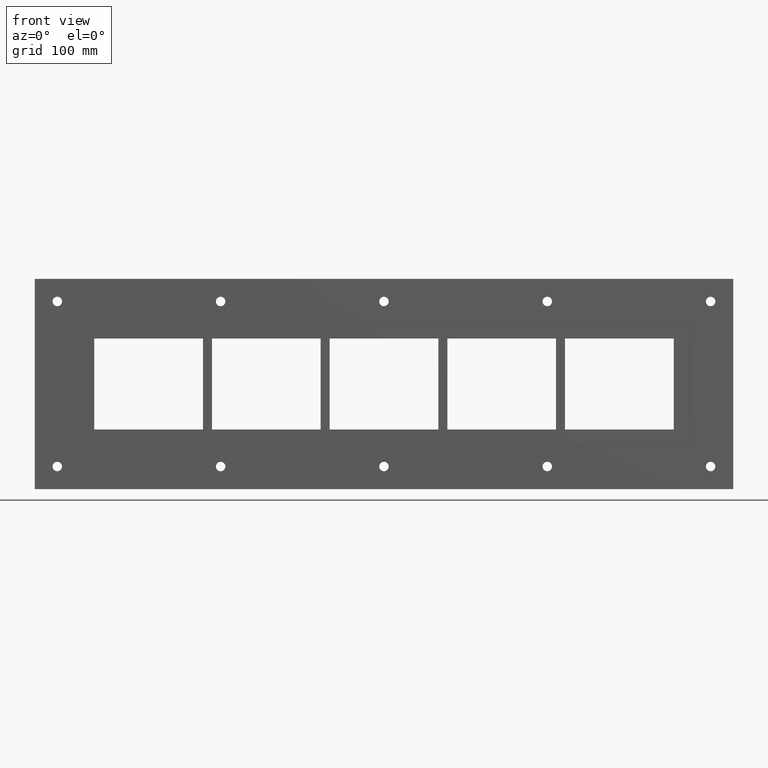
[diagram: clean part render]
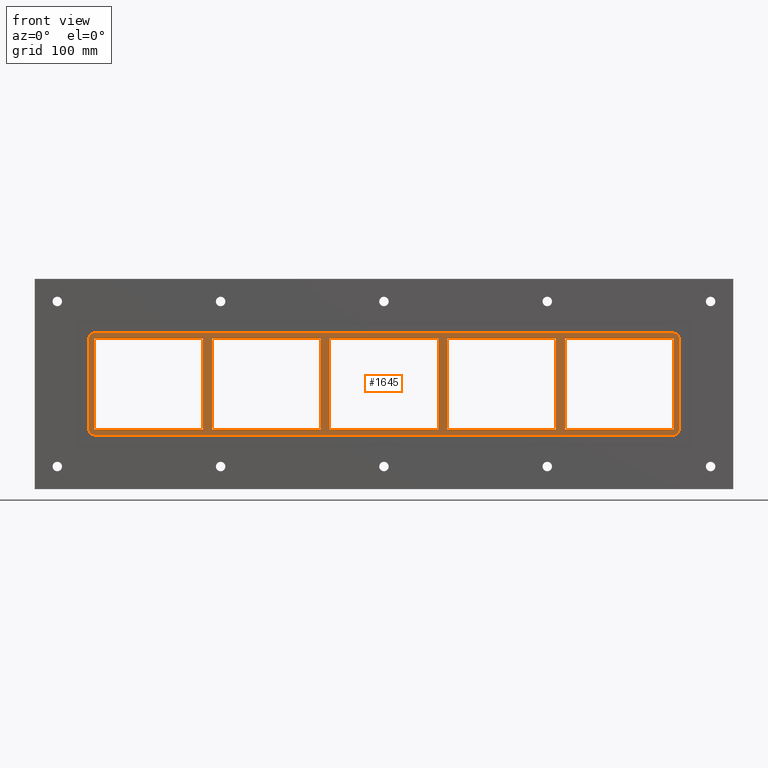
[diagram: same view with one face highlighted and labeled with its STEP entity id]
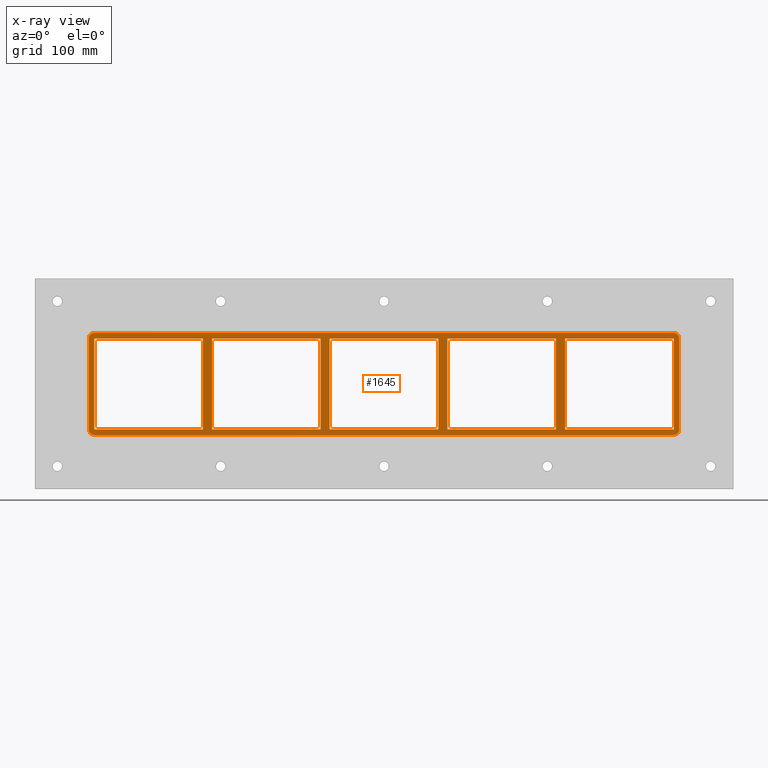
[diagram: x-ray of the same camera — body ghosted, the highlighted face saturated]
A machine part, front view. The second image highlights one B-rep face of the part: STEP entity #1645.
The next image is the same camera in x-ray: the body ghosted, the highlighted face saturated — about 0% of this face is hidden behind the body in this view.
In plain terms, the highlighted planar face has unit normal (0, 1, 0).
Its self-contained STEP definition (entity closure, byte-faithful):
#353=CARTESIAN_POINT('',(190.74999999999804,-3.0,-50.499999999999972));
#354=VERTEX_POINT('',#353);
#355=CARTESIAN_POINT('',(190.74999999999804,-3.0,50.499999999999972));
#356=VERTEX_POINT('',#355);
#357=CARTESIAN_POINT('',(190.74999999999804,-3.0,-50.499999999999972));
#358=DIRECTION('',(0.0,0.0,1.0));
#359=VECTOR('',#358,100.99999999999994);
#360=LINE('',#357,#359);
#361=EDGE_CURVE('',#354,#356,#360,.T.);
#393=CARTESIAN_POINT('',(200.74999999999278,-3.0,50.499999999999972));
#394=VERTEX_POINT('',#393);
#395=CARTESIAN_POINT('',(200.74999999999278,-3.0,-50.499999999987082));
#396=VERTEX_POINT('',#395);
#397=CARTESIAN_POINT('',(200.74999999999278,-3.0,50.499999999999972));
#398=DIRECTION('',(0.0,0.0,-1.0));
#399=VECTOR('',#398,100.99999999998704);
#400=LINE('',#397,#399);
#401=EDGE_CURVE('',#394,#396,#400,.T.);
#433=CARTESIAN_POINT('',(60.249999999997996,-3.0,-50.499999999999972));
#434=VERTEX_POINT('',#433);
#435=CARTESIAN_POINT('',(60.249999999997996,-3.0,50.499999999999972));
#436=VERTEX_POINT('',#435);
#437=CARTESIAN_POINT('',(60.249999999997996,-3.0,-50.499999999999972));
#438=DIRECTION('',(0.0,0.0,1.0));
#439=VECTOR('',#438,100.99999999999994);
#440=LINE('',#437,#439);
#441=EDGE_CURVE('',#434,#436,#440,.T.);
#473=CARTESIAN_POINT('',(70.249999999992738,-3.0,50.499999999999972));
#474=VERTEX_POINT('',#473);
#475=CARTESIAN_POINT('',(70.249999999992738,-3.0,-50.499999999987082));
#476=VERTEX_POINT('',#475);
#477=CARTESIAN_POINT('',(70.249999999992738,-3.0,50.499999999999972));
#478=DIRECTION('',(0.0,0.0,-1.0));
#479=VECTOR('',#478,100.99999999998704);
#480=LINE('',#477,#479);
#481=EDGE_CURVE('',#474,#476,#480,.T.);
#513=CARTESIAN_POINT('',(-70.250000000002018,-3.0,-50.499999999999972));
#514=VERTEX_POINT('',#513);
#515=CARTESIAN_POINT('',(-70.250000000002018,-3.0,50.499999999999972));
#516=VERTEX_POINT('',#515);
#517=CARTESIAN_POINT('',(-70.250000000002018,-3.0,-50.499999999999972));
#518=DIRECTION('',(0.0,0.0,1.0));
#519=VECTOR('',#518,100.99999999999994);
#520=LINE('',#517,#519);
#521=EDGE_CURVE('',#514,#516,#520,.T.);
#553=CARTESIAN_POINT('',(-60.250000000007269,-3.0,50.499999999999972));
#554=VERTEX_POINT('',#553);
#555=CARTESIAN_POINT('',(-60.250000000007269,-3.0,-50.499999999987082));
#556=VERTEX_POINT('',#555);
#557=CARTESIAN_POINT('',(-60.250000000007269,-3.0,50.499999999999972));
#558=DIRECTION('',(0.0,0.0,-1.0));
#559=VECTOR('',#558,100.99999999998704);
#560=LINE('',#557,#559);
#561=EDGE_CURVE('',#554,#556,#560,.T.);
#602=CARTESIAN_POINT('',(-190.75000000000728,-3.0,-50.499999999987082));
#603=VERTEX_POINT('',#602);
#610=CARTESIAN_POINT('',(-70.250000000002018,-3.0,-50.499999999999972));
#611=DIRECTION('',(-1.0,0.0,0.0));
#612=VECTOR('',#611,120.50000000000523);
#613=LINE('',#610,#612);
#614=EDGE_CURVE('',#514,#603,#613,.T.);
#632=CARTESIAN_POINT('',(60.249999999997982,-3.0,-50.499999999999972));
#633=DIRECTION('',(-1.0,0.0,0.0));
#634=VECTOR('',#633,120.50000000000526);
#635=LINE('',#632,#634);
#636=EDGE_CURVE('',#434,#556,#635,.T.);
#654=CARTESIAN_POINT('',(190.74999999999804,-3.0,-50.499999999999972));
#655=DIRECTION('',(-1.0,0.0,0.0));
#656=VECTOR('',#655,120.50000000000531);
#657=LINE('',#654,#656);
#658=EDGE_CURVE('',#354,#476,#657,.T.);
#669=CARTESIAN_POINT('',(321.25000000000006,-3.0,-50.499999999999972));
#670=VERTEX_POINT('',#669);
#671=CARTESIAN_POINT('',(321.25000000000006,-3.0,-50.499999999999972));
#672=DIRECTION('',(-1.0,0.0,0.0));
#673=VECTOR('',#672,120.50000000000728);
#674=LINE('',#671,#673);
#675=EDGE_CURVE('',#670,#396,#674,.T.);
#700=CARTESIAN_POINT('',(-190.75000000000728,-3.0,50.499999999999972));
#701=VERTEX_POINT('',#700);
#702=CARTESIAN_POINT('',(-190.75000000000728,-3.0,50.499999999999972));
#703=DIRECTION('',(1.0,0.0,0.0));
#704=VECTOR('',#703,120.50000000000526);
#705=LINE('',#702,#704);
#706=EDGE_CURVE('',#701,#516,#705,.T.);
#731=CARTESIAN_POINT('',(-60.250000000007276,-3.0,50.499999999999972));
#732=DIRECTION('',(1.0,0.0,0.0));
#733=VECTOR('',#732,120.50000000000529);
#734=LINE('',#731,#733);
#735=EDGE_CURVE('',#554,#436,#734,.T.);
#761=CARTESIAN_POINT('',(321.25000000000006,-3.0,50.499999999999972));
#762=VERTEX_POINT('',#761);
#769=CARTESIAN_POINT('',(200.74999999999278,-3.0,50.499999999999972));
#770=DIRECTION('',(1.0,0.0,0.0));
#771=VECTOR('',#770,120.50000000000728);
#772=LINE('',#769,#771);
#773=EDGE_CURVE('',#394,#762,#772,.T.);
#784=CARTESIAN_POINT('',(70.249999999992724,-3.0,50.499999999999972));
#785=DIRECTION('',(1.0,0.0,0.0));
#786=VECTOR('',#785,120.50000000000534);
#787=LINE('',#784,#786);
#788=EDGE_CURVE('',#474,#356,#787,.T.);
#805=CARTESIAN_POINT('',(-200.75000000000202,-3.0,-50.499999999999972));
#806=VERTEX_POINT('',#805);
#807=CARTESIAN_POINT('',(-200.75000000000202,-3.0,50.499999999999972));
#808=VERTEX_POINT('',#807);
#809=CARTESIAN_POINT('',(-200.75000000000202,-3.0,-50.499999999999972));
#810=DIRECTION('',(0.0,0.0,1.0));
#811=VECTOR('',#810,100.99999999999994);
#812=LINE('',#809,#811);
#813=EDGE_CURVE('',#806,#808,#812,.T.);
#845=CARTESIAN_POINT('',(-190.75000000000728,-3.0,50.499999999999972));
#846=DIRECTION('',(0.0,0.0,-1.0));
#847=VECTOR('',#846,100.99999999998704);
#848=LINE('',#845,#847);
#849=EDGE_CURVE('',#701,#603,#848,.T.);
#876=CARTESIAN_POINT('',(-321.24999999999994,-3.0,-50.499999999999972));
#877=VERTEX_POINT('',#876);
#884=CARTESIAN_POINT('',(-200.75000000000202,-3.0,-50.499999999999972));
#885=DIRECTION('',(-1.0,0.0,0.0));
#886=VECTOR('',#885,120.49999999999798);
#887=LINE('',#884,#886);
#888=EDGE_CURVE('',#806,#877,#887,.T.);
#899=CARTESIAN_POINT('',(-321.24999999999994,-3.0,50.499999999999972));
#900=VERTEX_POINT('',#899);
#901=CARTESIAN_POINT('',(-321.24999999999994,-3.0,50.499999999999972));
#902=DIRECTION('',(1.0,0.0,0.0));
#903=VECTOR('',#902,120.49999999999793);
#904=LINE('',#901,#903);
#905=EDGE_CURVE('',#900,#808,#904,.T.);
#1285=CARTESIAN_POINT('',(-321.25,-3.0,-50.499999999999972));
#1286=DIRECTION('',(0.0,0.0,1.0));
#1287=VECTOR('',#1286,100.99999999999994);
#1288=LINE('',#1285,#1287);
#1289=EDGE_CURVE('',#877,#900,#1288,.T.);
#1300=CARTESIAN_POINT('',(321.24999999999994,-3.0,56.499999999999986));
#1301=VERTEX_POINT('',#1300);
#1308=CARTESIAN_POINT('',(327.25,-3.0,50.499999999999986));
#1309=VERTEX_POINT('',#1308);
#1310=CARTESIAN_POINT('',(321.25,-3.0,50.499999999999986));
#1311=DIRECTION('',(0.0,1.0,0.0));
#1312=DIRECTION('',(0.707106781186544,0.0,0.707106781186551));
#1313=AXIS2_PLACEMENT_3D('',#1310,#1311,#1312);
#1314=CIRCLE('',#1313,6.0);
#1315=EDGE_CURVE('',#1301,#1309,#1314,.T.);
#1365=CARTESIAN_POINT('',(327.25,-3.0,-50.499999999999986));
#1366=VERTEX_POINT('',#1365);
#1367=CARTESIAN_POINT('',(327.25,-3.0,-50.499999999999986));
#1368=DIRECTION('',(0.0,0.0,1.0));
#1369=VECTOR('',#1368,100.99999999999997);
#1370=LINE('',#1367,#1369);
#1371=EDGE_CURVE('',#1366,#1309,#1370,.T.);
#1412=CARTESIAN_POINT('',(-321.25,-3.0,56.499999999999986));
#1413=VERTEX_POINT('',#1412);
#1420=CARTESIAN_POINT('',(321.25,-3.0,56.499999999999986));
#1421=DIRECTION('',(-1.0,0.0,0.0));
#1422=VECTOR('',#1421,642.5);
#1423=LINE('',#1420,#1422);
#1424=EDGE_CURVE('',#1301,#1413,#1423,.T.);
#1437=CARTESIAN_POINT('',(321.25,-3.0,-56.499999999999986));
#1438=VERTEX_POINT('',#1437);
#1439=CARTESIAN_POINT('',(321.25,-3.0,-50.499999999999986));
#1440=DIRECTION('',(0.0,1.0,0.0));
#1441=DIRECTION('',(0.707106781186544,0.0,-0.707106781186551));
#1442=AXIS2_PLACEMENT_3D('',#1439,#1440,#1441);
#1443=CIRCLE('',#1442,6.0);
#1444=EDGE_CURVE('',#1366,#1438,#1443,.T.);
#1486=CARTESIAN_POINT('',(-327.25,-3.0,50.499999999999986));
#1487=VERTEX_POINT('',#1486);
#1494=CARTESIAN_POINT('',(-321.25,-3.0,50.499999999999986));
#1495=DIRECTION('',(0.0,1.0,0.0));
#1496=DIRECTION('',(-0.707106781186544,0.0,0.707106781186551));
#1497=AXIS2_PLACEMENT_3D('',#1494,#1495,#1496);
#1498=CIRCLE('',#1497,6.0);
#1499=EDGE_CURVE('',#1487,#1413,#1498,.T.);
#1512=CARTESIAN_POINT('',(-321.24999999999994,-3.0,-56.499999999999986));
#1513=VERTEX_POINT('',#1512);
#1514=CARTESIAN_POINT('',(-321.25,-3.0,-56.499999999999986));
#1515=DIRECTION('',(1.0,0.0,0.0));
#1516=VECTOR('',#1515,642.5);
#1517=LINE('',#1514,#1516);
#1518=EDGE_CURVE('',#1513,#1438,#1517,.T.);
#1559=CARTESIAN_POINT('',(-327.25,-3.0,-50.499999999999986));
#1560=VERTEX_POINT('',#1559);
#1567=CARTESIAN_POINT('',(-327.25,-3.0,50.499999999999986));
#1568=DIRECTION('',(0.0,0.0,-1.0));
#1569=VECTOR('',#1568,100.99999999999997);
#1570=LINE('',#1567,#1569);
#1571=EDGE_CURVE('',#1487,#1560,#1570,.T.);
#1584=CARTESIAN_POINT('',(-321.25,-3.0,-50.499999999999986));
#1585=DIRECTION('',(0.0,1.0,0.0));
#1586=DIRECTION('',(-0.707106781186544,0.0,-0.707106781186551));
#1587=AXIS2_PLACEMENT_3D('',#1584,#1585,#1586);
#1588=CIRCLE('',#1587,6.0);
#1589=EDGE_CURVE('',#1513,#1560,#1588,.T.);
#1595=CARTESIAN_POINT('',(0.0,-3.0,0.0));
#1596=DIRECTION('',(0.0,1.0,0.0));
#1597=DIRECTION('',(0.0,0.0,1.0));
#1598=AXIS2_PLACEMENT_3D('',#1595,#1596,#1597);
#1599=PLANE('',#1598);
#1600=ORIENTED_EDGE('',*,*,#1444,.F.);
#1601=ORIENTED_EDGE('',*,*,#1371,.T.);
#1602=ORIENTED_EDGE('',*,*,#1315,.F.);
#1603=ORIENTED_EDGE('',*,*,#1424,.T.);
#1604=ORIENTED_EDGE('',*,*,#1499,.F.);
#1605=ORIENTED_EDGE('',*,*,#1571,.T.);
#1606=ORIENTED_EDGE('',*,*,#1589,.F.);
#1607=ORIENTED_EDGE('',*,*,#1518,.T.);
#1608=EDGE_LOOP('',(#1600,#1601,#1602,#1603,#1604,#1605,#1606,#1607));
#1609=FACE_OUTER_BOUND('',#1608,.T.);
#1610=ORIENTED_EDGE('',*,*,#658,.T.);
#1611=ORIENTED_EDGE('',*,*,#481,.F.);
#1612=ORIENTED_EDGE('',*,*,#788,.T.);
#1613=ORIENTED_EDGE('',*,*,#361,.F.);
#1614=EDGE_LOOP('',(#1610,#1611,#1612,#1613));
#1615=FACE_BOUND('',#1614,.T.);
#1616=ORIENTED_EDGE('',*,*,#636,.T.);
#1617=ORIENTED_EDGE('',*,*,#561,.F.);
#1618=ORIENTED_EDGE('',*,*,#735,.T.);
#1619=ORIENTED_EDGE('',*,*,#441,.F.);
#1620=EDGE_LOOP('',(#1616,#1617,#1618,#1619));
#1621=FACE_BOUND('',#1620,.T.);
#1622=ORIENTED_EDGE('',*,*,#614,.T.);
#1623=ORIENTED_EDGE('',*,*,#849,.F.);
#1624=ORIENTED_EDGE('',*,*,#706,.T.);
#1625=ORIENTED_EDGE('',*,*,#521,.F.);
#1626=EDGE_LOOP('',(#1622,#1623,#1624,#1625));
#1627=FACE_BOUND('',#1626,.T.);
#1628=ORIENTED_EDGE('',*,*,#888,.T.);
#1629=ORIENTED_EDGE('',*,*,#1289,.T.);
#1630=ORIENTED_EDGE('',*,*,#905,.T.);
#1631=ORIENTED_EDGE('',*,*,#813,.F.);
#1632=EDGE_LOOP('',(#1628,#1629,#1630,#1631));
#1633=FACE_BOUND('',#1632,.T.);
#1634=ORIENTED_EDGE('',*,*,#401,.F.);
#1635=ORIENTED_EDGE('',*,*,#773,.T.);
#1636=CARTESIAN_POINT('',(321.25000000000006,-3.0,50.499999999999972));
#1637=DIRECTION('',(0.0,0.0,-1.0));
#1638=VECTOR('',#1637,100.99999999999994);
#1639=LINE('',#1636,#1638);
#1640=EDGE_CURVE('',#762,#670,#1639,.T.);
#1641=ORIENTED_EDGE('',*,*,#1640,.T.);
#1642=ORIENTED_EDGE('',*,*,#675,.T.);
#1643=EDGE_LOOP('',(#1634,#1635,#1641,#1642));
#1644=FACE_BOUND('',#1643,.T.);
#1645=ADVANCED_FACE('',(#1609,#1615,#1621,#1627,#1633,#1644),#1599,.F.);